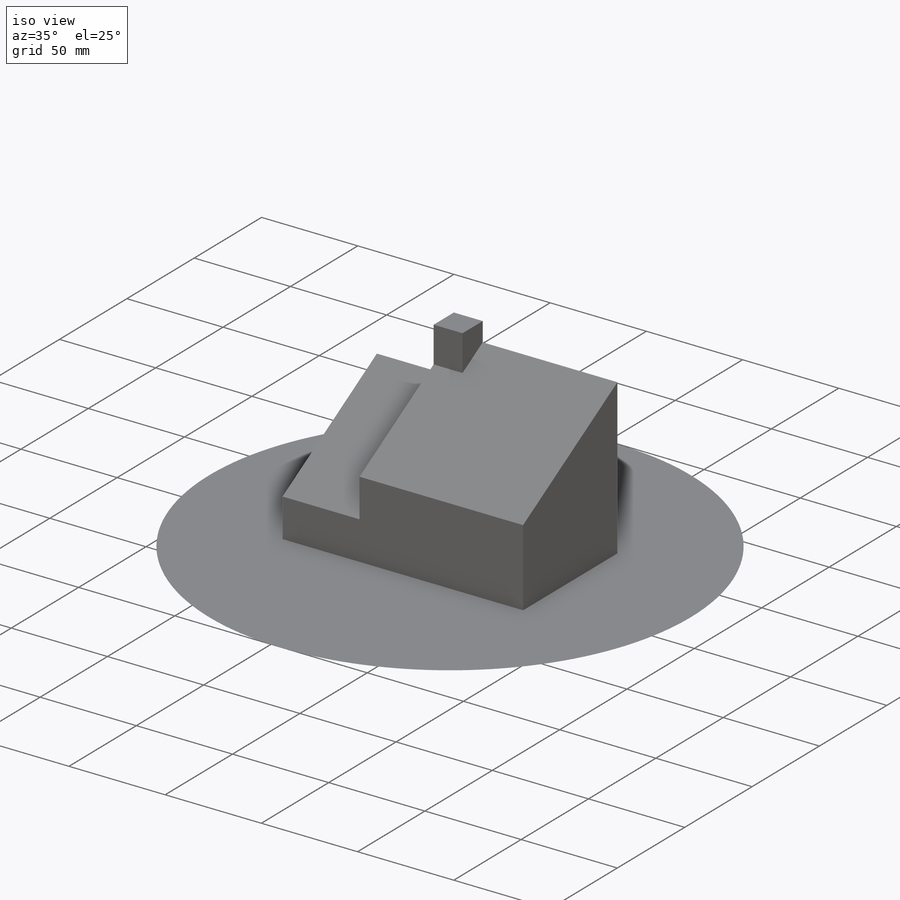
[diagram: iso view]
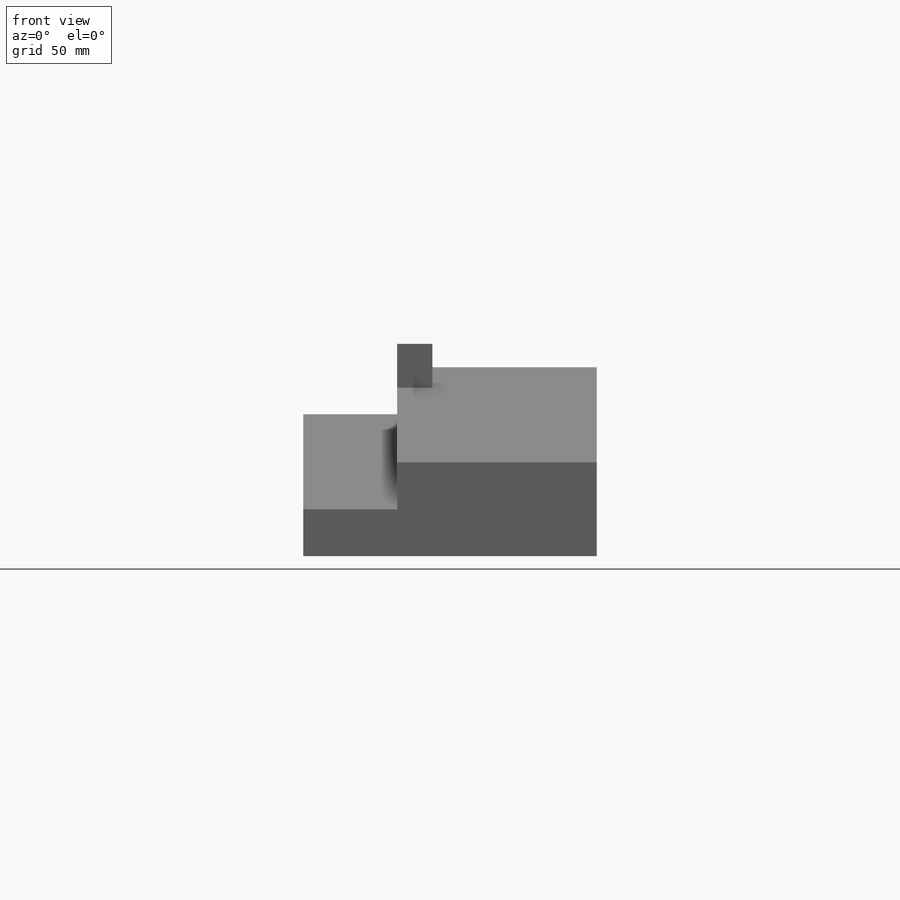
[diagram: front view]
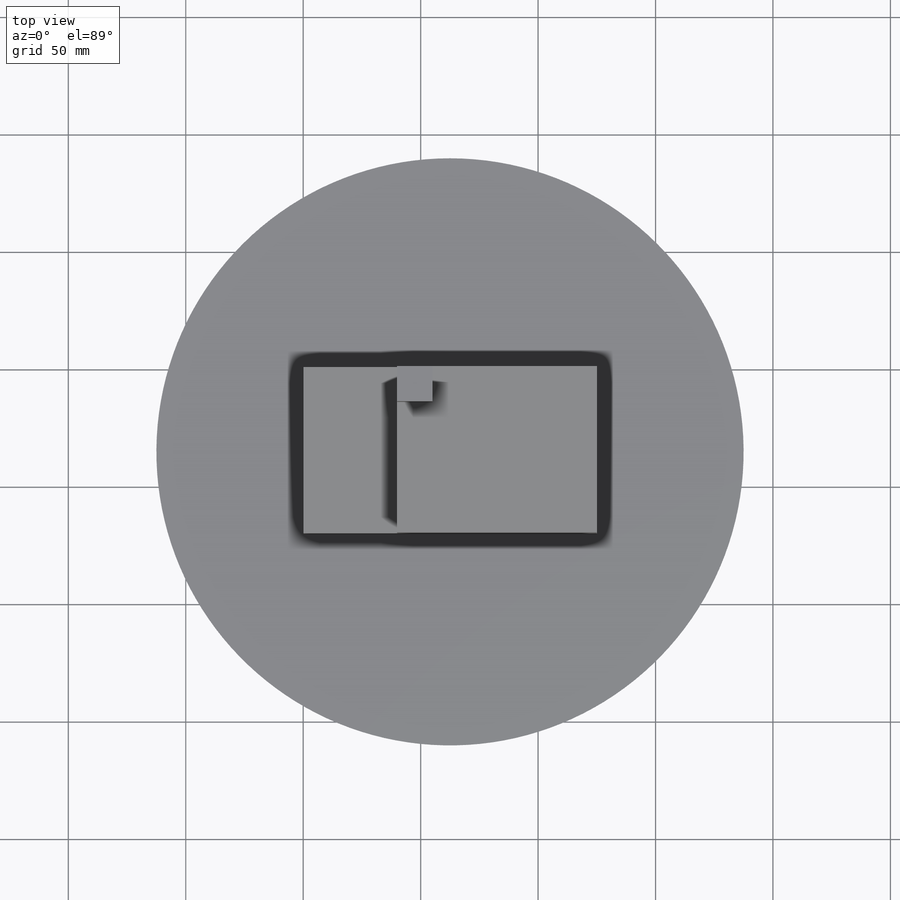
[diagram: top view]
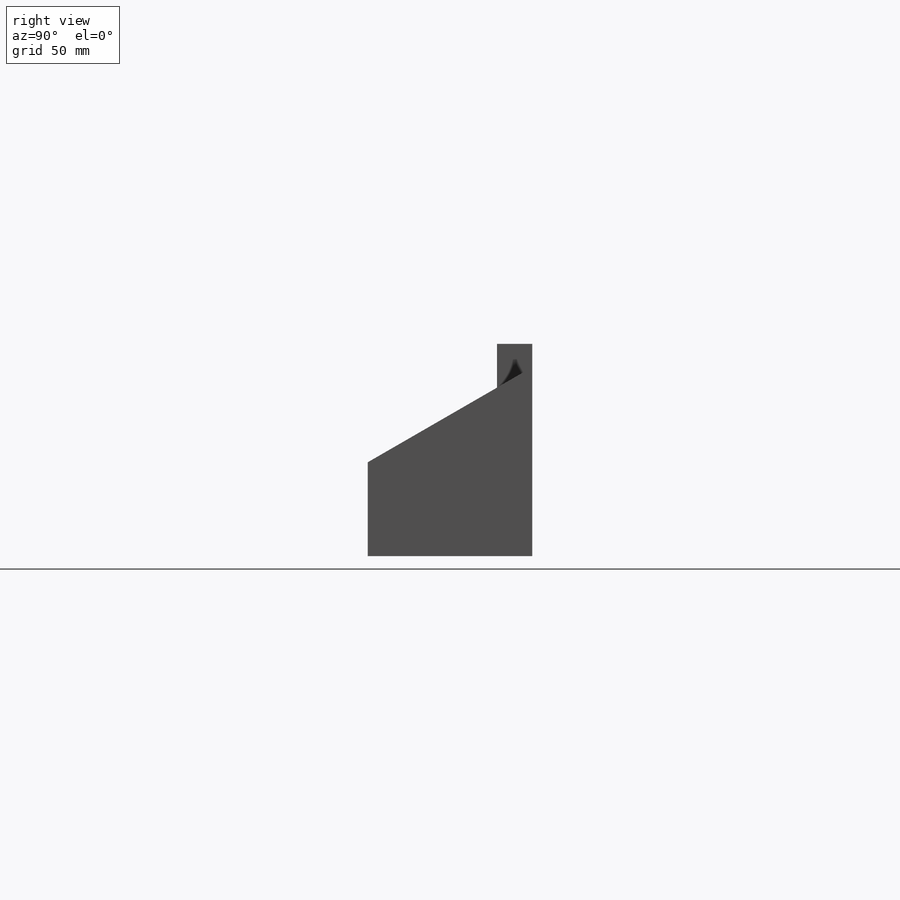
[diagram: right view]
SOLIDWORKS PART (.sldprt)
format: sldprt  version: not decoded by parser v0  size: 234,496 bytes
history: native  units: mm
features: sketch x5, extrude x5, material x1, plane x1 (+14 scaffold rows collapsed)
feature tree (26):
  scaffold x14  (default folders/planes/origin — collapsed)
  material  "Material <not specified>"
  sketch  "Sketch1"  dims[D1=70.0mm D2=125.0mm]
  extrude  "Extrude1"  Depth=20mm
  sketch  "Sketch2"  dims[c1.D1=~79.682765mm c2.D1=30.0deg]
  extrude  "Extrude2"  Depth=40mm
  sketch  "Sketch3"  dims[c1.D1=20.0mm c1.D2=70.0mm c2.D2=30.0deg]
  extrude  "Extrude3"  Depth=85mm
  plane  "Plane1"
  sketch  "Sketch5"  dims[D1=15.0mm D2=15.0mm]
  extrude  "Extrude5"  Depth=10mm
  sketch  "Sketch6"  dims[D1=250.0mm]
  extrude  "Extrude6"  Depth=0.01mm
decode coverage: 10 of 10 modeling features carry decoded parameters
note: ~ marks probable driven/reference dimensions
note: suppression state not decoded; provenance and decode notes live in map.json
